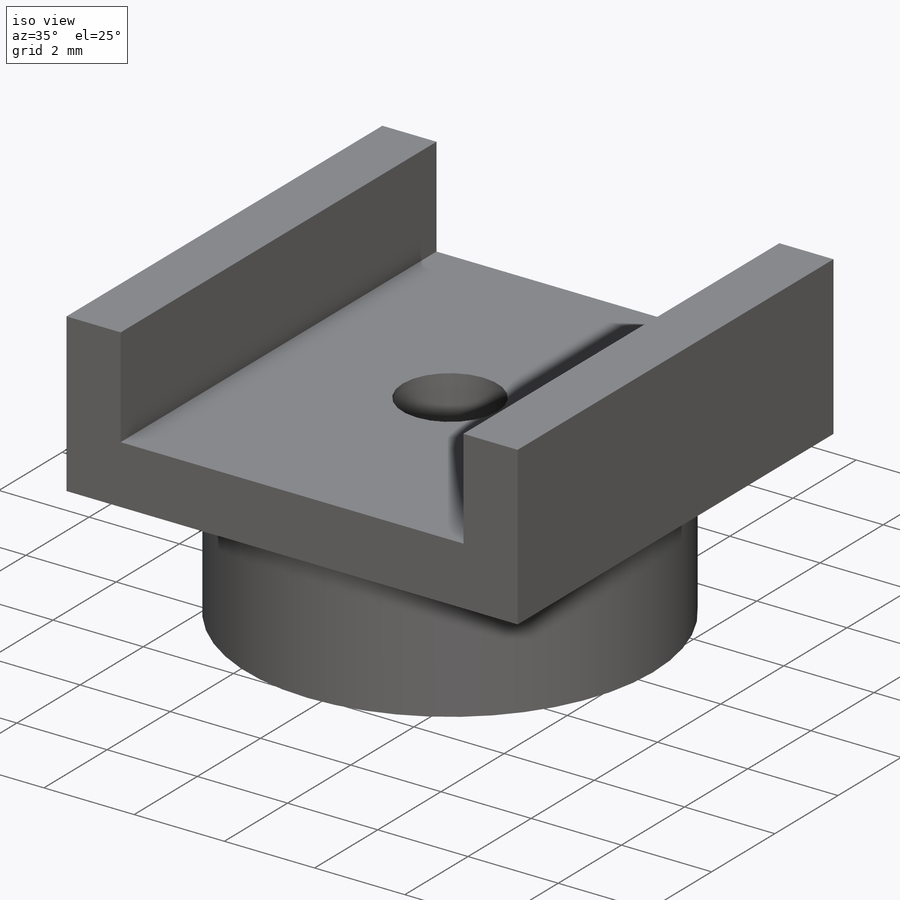
[diagram: iso view]
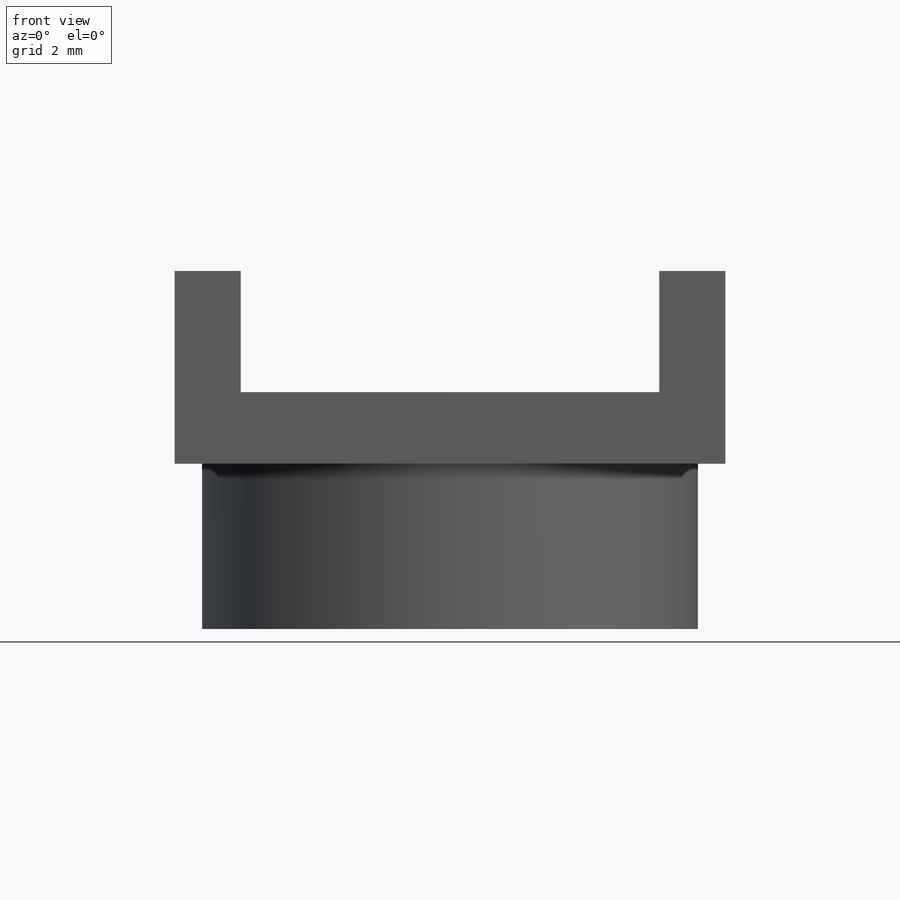
[diagram: front view]
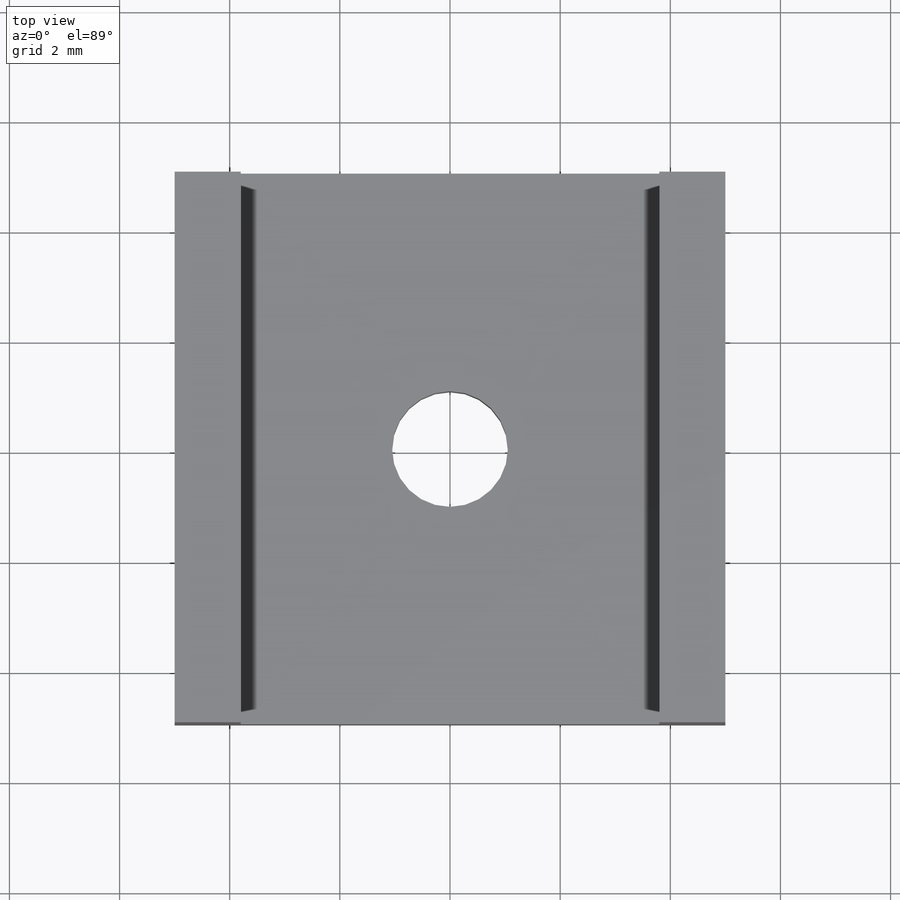
[diagram: top view]
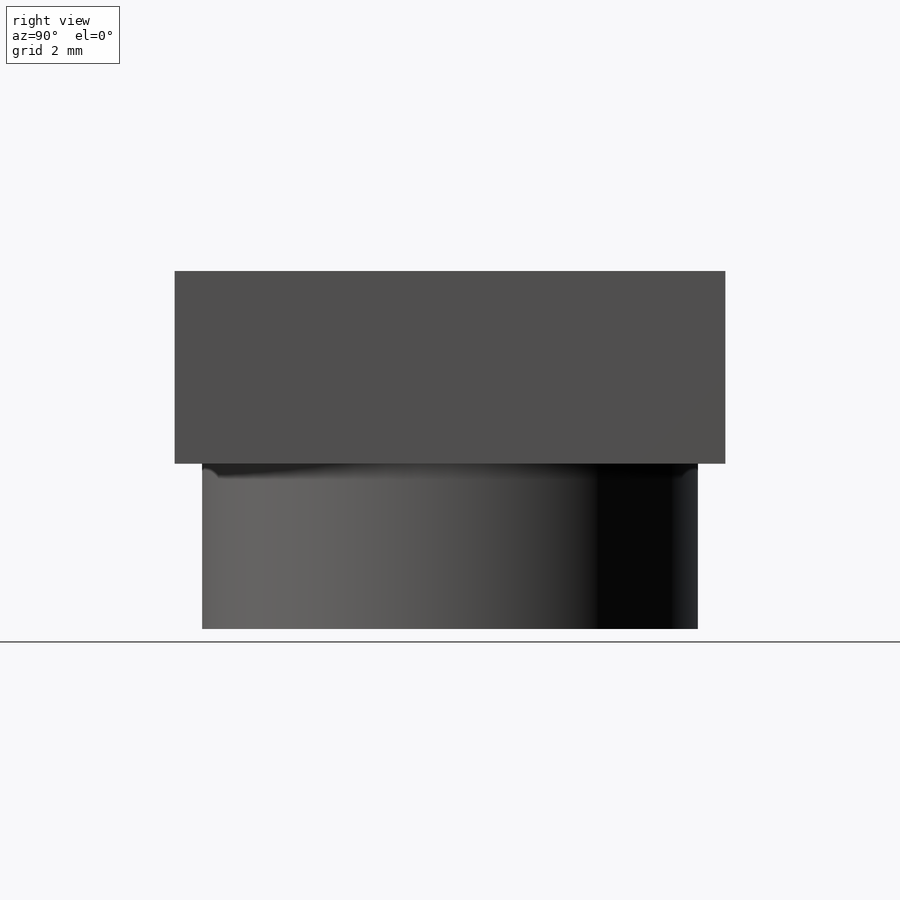
[diagram: right view]
SOLIDWORKS PART (.sldprt)
format: sldprt  version: not decoded by parser v0  size: 171,008 bytes
history: native  units: mm
features: sketch x5, plane x3, cut_extrude x3, extrude x2, material x1 (+9 scaffold rows collapsed)
feature tree (23):
  scaffold x9  (default folders/planes/origin — collapsed)
  material  "ABS"
  plane  "Plano frontal"
  plane  "Plano superior"
  plane  "Plano direito"
  sketch  "Esboço1"  dims[D1=9.0mm]
  extrude  "Ressalto-extrusão1"  Depth=3mm
  sketch  "Esboço2"  dims[D1=5.6mm]
  cut_extrude  "Corte-extrusão1"  [1 undecoded]
  sketch  "Esboço3"  dims[D1=10.0mm D2=10.0mm]
  extrude  "Ressalto-extrusão2"  Depth=3.5mm
  sketch  "Esboço4"  dims[D1=1.2mm D2=1.2mm]
  cut_extrude  "Corte-extrusão2"  Depth=2.2mm
  sketch  "Esboço5"
  cut_extrude  "Corte-extrusão3"  [1 undecoded]
decode coverage: 7 of 10 modeling features carry decoded parameters
note: 2 parameter values undecoded
note: suppression state not decoded; provenance and decode notes live in map.json
